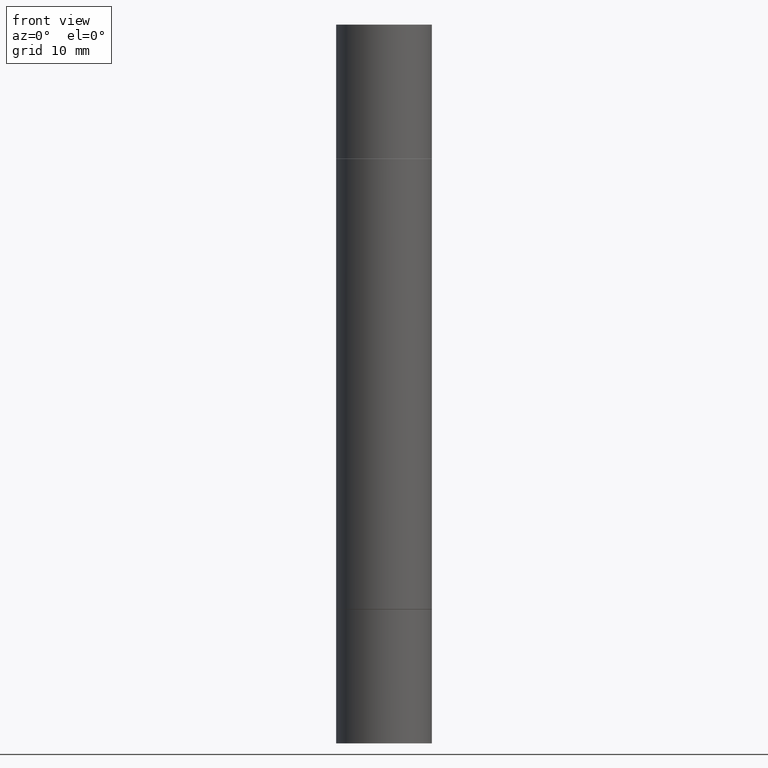
[diagram: clean part render]
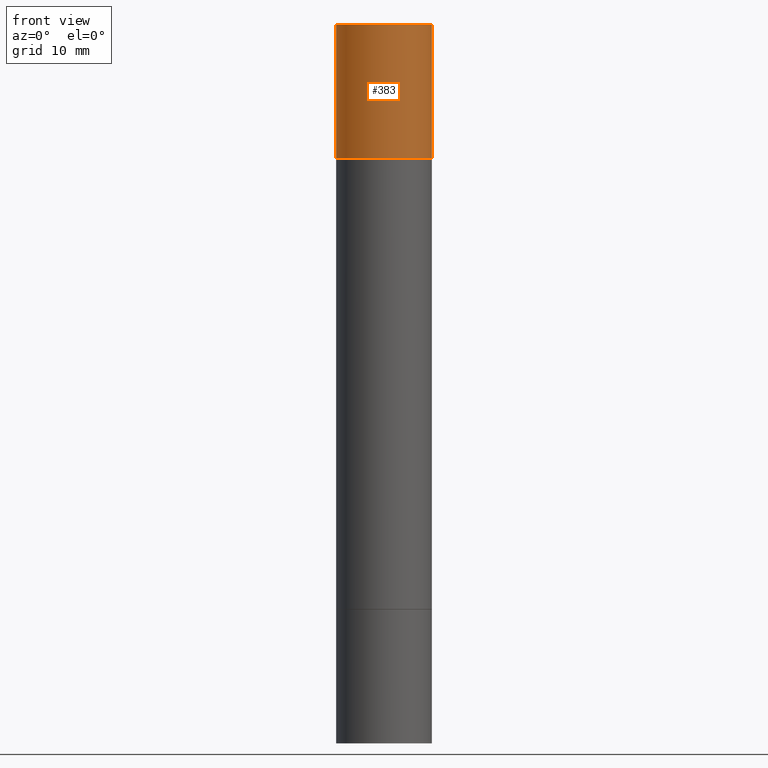
[diagram: same view with one face highlighted and labeled with its STEP entity id]
A machine part, front view. The second image highlights one B-rep face of the part: STEP entity #383.
In plain terms, the highlighted cylindrical surface (partial cylindrical patch) has radius 5 mm, axis along (-0, -0, -1).
Its self-contained STEP definition (entity closure, byte-faithful):
#11 = EDGE_CURVE ( 'NONE', #594, #632, #358, .T. ) ;
#29 = CARTESIAN_POINT ( 'NONE',  ( 0.1968500000000000250, -1.372515848155552113E-15, 5.463695987328526437E-16 ) ) ;
#32 = ORIENTED_EDGE ( 'NONE', *, *, #158, .T. ) ;
#65 = CYLINDRICAL_SURFACE ( 'NONE', #185, 0.1968500000000000250 ) ;
#72 = AXIS2_PLACEMENT_3D ( 'NONE', #199, #123, #76 ) ;
#76 = DIRECTION ( 'NONE',  ( 1.000000000000000000, -6.982962677686267499E-15, 0.000000000000000000 ) ) ;
#123 = DIRECTION ( 'NONE',  ( 2.445468806185136597E-29, 3.492890411551752677E-15, 1.000000000000000000 ) ) ;
#139 = AXIS2_PLACEMENT_3D ( 'NONE', #430, #233, #653 ) ;
#153 = EDGE_LOOP ( 'NONE', ( #357, #592, #32, #215 ) ) ;
#158 = EDGE_CURVE ( 'NONE', #582, #441, #220, .T. ) ;
#185 = AXIS2_PLACEMENT_3D ( 'NONE', #373, #495, #481 ) ;
#199 = CARTESIAN_POINT ( 'NONE',  ( 5.873037884934223228E-29, -1.923200839900336120E-15, -0.5511999999999995792 ) ) ;
#215 = ORIENTED_EDGE ( 'NONE', *, *, #464, .F. ) ;
#220 = CIRCLE ( 'NONE', #72, 0.1968500000000000250 ) ;
#233 = DIRECTION ( 'NONE',  ( 2.445468806185136597E-29, 3.492890411551752677E-15, 1.000000000000000000 ) ) ;
#244 = CARTESIAN_POINT ( 'NONE',  ( -0.1968500000000000250, 3.899287883846532010E-16, -0.5511999999999995792 ) ) ;
#259 = EDGE_CURVE ( 'NONE', #594, #582, #317, .T. ) ;
#280 = LINE ( 'NONE', #589, #661 ) ;
#317 = LINE ( 'NONE', #670, #676 ) ;
#357 = ORIENTED_EDGE ( 'NONE', *, *, #11, .F. ) ;
#358 = CIRCLE ( 'NONE', #139, 0.1968500000000000250 ) ;
#373 = CARTESIAN_POINT ( 'NONE',  ( 0.000000000000000000, -1.031172645228302408E-14, -2.952799999999998981 ) ) ;
#378 = CARTESIAN_POINT ( 'NONE',  ( 0.1968500000000000250, -3.297797043002877729E-15, -0.5511999999999995792 ) ) ;
#383 = ADVANCED_FACE ( 'NONE', ( #516 ), #65, .T. ) ;
#430 = CARTESIAN_POINT ( 'NONE',  ( 7.220980290903470182E-29, 2.080354946989631982E-18, 5.463695987328526437E-16 ) ) ;
#441 = VERTEX_POINT ( 'NONE', #378 ) ;
#464 = EDGE_CURVE ( 'NONE', #632, #441, #280, .T. ) ;
#481 = DIRECTION ( 'NONE',  ( 1.000000000000000000, -6.982962677686267499E-15, 0.000000000000000000 ) ) ;
#495 = DIRECTION ( 'NONE',  ( -2.445468806185136597E-29, -3.492890411551752677E-15, -1.000000000000000000 ) ) ;
#516 = FACE_OUTER_BOUND ( 'NONE', #153, .T. ) ;
#582 = VERTEX_POINT ( 'NONE', #244 ) ;
#589 = CARTESIAN_POINT ( 'NONE',  ( 0.1968500000000000250, -1.168632265538556569E-14, -2.952799999999998981 ) ) ;
#592 = ORIENTED_EDGE ( 'NONE', *, *, #259, .T. ) ;
#594 = VERTEX_POINT ( 'NONE', #600 ) ;
#600 = CARTESIAN_POINT ( 'NONE',  ( -0.1968500000000000250, 3.899287883846529545E-16, 5.463695987328561936E-16 ) ) ;
#618 = DIRECTION ( 'NONE',  ( -2.445468806185136877E-29, -3.492890411551753071E-15, -1.000000000000000000 ) ) ;
#632 = VERTEX_POINT ( 'NONE', #29 ) ;
#639 = DIRECTION ( 'NONE',  ( -2.445468806185136877E-29, -3.492890411551753071E-15, -1.000000000000000000 ) ) ;
#653 = DIRECTION ( 'NONE',  ( 1.000000000000000000, -6.982962677686265922E-15, 0.000000000000000000 ) ) ;
#661 = VECTOR ( 'NONE', #639, 39.37007874015748143 ) ;
#670 = CARTESIAN_POINT ( 'NONE',  ( -0.1968500000000000250, -8.961237421421697861E-15, -2.952799999999998981 ) ) ;
#676 = VECTOR ( 'NONE', #618, 39.37007874015748143 ) ;